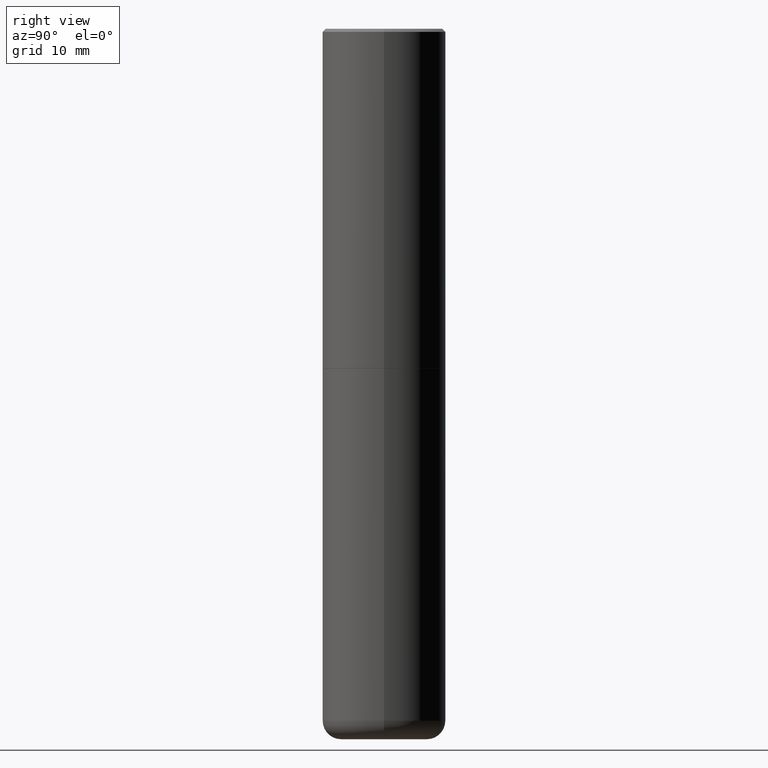
[diagram: clean part render]
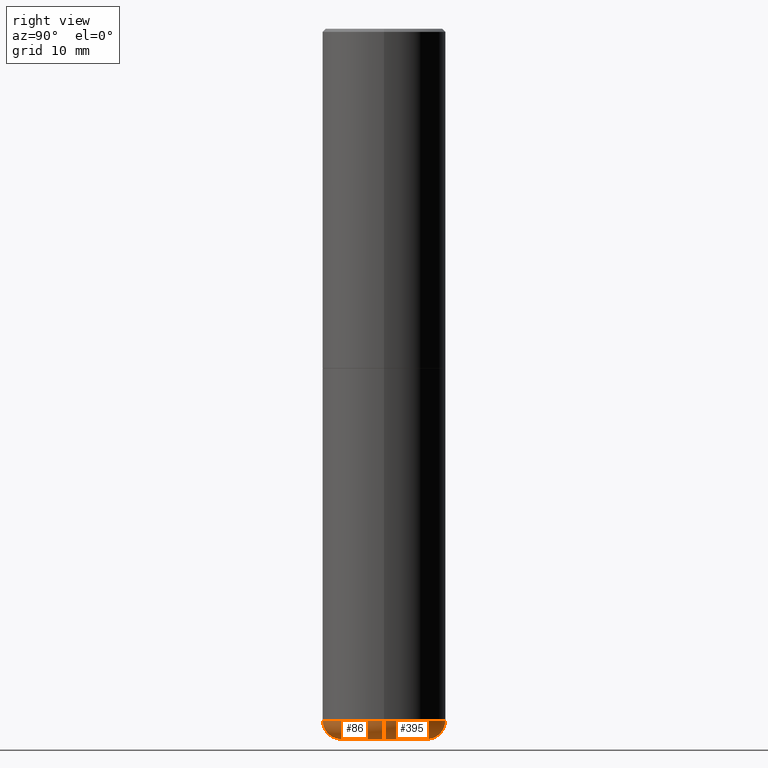
[diagram: same view with one multi-face feature highlighted, each face labeled with its STEP entity id]
A machine part, right view. The highlighted faces form ONE feature: a constant-radius fillet chain: 2 tangent blend faces with common blend radius 2.9997 mm. The faces share edges in the B-rep.
Their STEP definitions:
[1] entity #395 (Torus):
#1 = ORIENTED_EDGE ( 'NONE', *, *, #77, .F. ) ;
#7 = AXIS2_PLACEMENT_3D ( 'NONE', #285, #251, #155 ) ;
#10 = CARTESIAN_POINT ( 'NONE',  ( 1.078329470087335798E-28, -1.539568696362884818E-14, -4.409499999999999531 ) ) ;
#22 = DIRECTION ( 'NONE',  ( -2.445468806185136597E-29, 3.491481338843145583E-15, 1.000000000000000000 ) ) ;
#25 = CARTESIAN_POINT ( 'NONE',  ( 0.2756000000000000116, -1.773253542371655569E-14, -4.527599999999998737 ) ) ;
#27 = CARTESIAN_POINT ( 'NONE',  ( -0.3936999999999998834, -1.259828021294133576E-14, -4.409499999999999531 ) ) ;
#31 = VERTEX_POINT ( 'NONE', #25 ) ;
#35 = DIRECTION ( 'NONE',  ( 7.105427357601001859E-15, 1.000000000000000000, -3.491481338843145583E-15 ) ) ;
#56 = CIRCLE ( 'NONE', #7, 0.1180999999999997191 ) ;
#62 = VERTEX_POINT ( 'NONE', #194 ) ;
#69 = ORIENTED_EDGE ( 'NONE', *, *, #403, .T. ) ;
#71 = AXIS2_PLACEMENT_3D ( 'NONE', #316, #22, #327 ) ;
#73 = DIRECTION ( 'NONE',  ( 1.000000000000000000, -6.982962677686268288E-15, 4.883557194083112901E-29 ) ) ;
#77 = EDGE_CURVE ( 'NONE', #31, #62, #56, .T. ) ;
#115 = CIRCLE ( 'NONE', #349, 0.2756000000000000116 ) ;
#131 = CARTESIAN_POINT ( 'NONE',  ( 1.107210456688382074E-28, -1.580803090974622074E-14, -4.527599999999998737 ) ) ;
#144 = ORIENTED_EDGE ( 'NONE', *, *, #298, .F. ) ;
#148 = FACE_OUTER_BOUND ( 'NONE', #235, .T. ) ;
#155 = DIRECTION ( 'NONE',  ( 1.000000000000000000, -6.982962677686273021E-15, 0.000000000000000000 ) ) ;
#173 = AXIS2_PLACEMENT_3D ( 'NONE', #10, #265, #73 ) ;
#194 = CARTESIAN_POINT ( 'NONE',  ( 0.3936999999999998834, -1.814487936983393140E-14, -4.409499999999999531 ) ) ;
#222 = AXIS2_PLACEMENT_3D ( 'NONE', #242, #35, #359 ) ;
#228 = VERTEX_POINT ( 'NONE', #27 ) ;
#235 = EDGE_LOOP ( 'NONE', ( #390, #69, #144, #1 ) ) ;
#242 = CARTESIAN_POINT ( 'NONE',  ( -0.2756000000000000116, -1.343743118387401317E-14, -4.409499999999999531 ) ) ;
#251 = DIRECTION ( 'NONE',  ( -6.982962677686266711E-15, -1.000000000000000000, 3.491481338843145583E-15 ) ) ;
#260 = DIRECTION ( 'NONE',  ( -2.445468806185136597E-29, 3.491481338843145583E-15, 1.000000000000000000 ) ) ;
#265 = DIRECTION ( 'NONE',  ( -2.445468806185136597E-29, 3.491481338843145583E-15, 1.000000000000000000 ) ) ;
#285 = CARTESIAN_POINT ( 'NONE',  ( 0.2756000000000000116, -1.732019147759918314E-14, -4.409499999999999531 ) ) ;
#298 = EDGE_CURVE ( 'NONE', #62, #228, #321, .T. ) ;
#309 = VERTEX_POINT ( 'NONE', #351 ) ;
#316 = CARTESIAN_POINT ( 'NONE',  ( 1.078329470087335798E-28, -1.539568696362884818E-14, -4.409499999999999531 ) ) ;
#321 = CIRCLE ( 'NONE', #71, 0.3937000000000000499 ) ;
#324 = CIRCLE ( 'NONE', #222, 0.1180999999999997191 ) ;
#327 = DIRECTION ( 'NONE',  ( 1.000000000000000000, -6.982962677686262766E-15, 0.000000000000000000 ) ) ;
#349 = AXIS2_PLACEMENT_3D ( 'NONE', #131, #260, #386 ) ;
#351 = CARTESIAN_POINT ( 'NONE',  ( -0.2756000000000000116, -1.322402767146636311E-14, -4.527599999999998737 ) ) ;
#359 = DIRECTION ( 'NONE',  ( -1.000000000000000000, 7.105427357601005014E-15, 0.000000000000000000 ) ) ;
#373 = EDGE_CURVE ( 'NONE', #31, #309, #115, .T. ) ;
#386 = DIRECTION ( 'NONE',  ( 1.000000000000000000, -6.982962677686265922E-15, 0.000000000000000000 ) ) ;
#390 = ORIENTED_EDGE ( 'NONE', *, *, #373, .T. ) ;
#395 = ADVANCED_FACE ( 'NONE', ( #148 ), #408, .T. ) ;
#403 = EDGE_CURVE ( 'NONE', #309, #228, #324, .T. ) ;
#408 = TOROIDAL_SURFACE ( 'NONE', #173, 0.2756000000000000116, 0.1180999999999997468 ) ;
[2] entity #86 (Torus):
#7 = AXIS2_PLACEMENT_3D ( 'NONE', #285, #251, #155 ) ;
#25 = CARTESIAN_POINT ( 'NONE',  ( 0.2756000000000000116, -1.773253542371655569E-14, -4.527599999999998737 ) ) ;
#27 = CARTESIAN_POINT ( 'NONE',  ( -0.3936999999999998834, -1.259828021294133576E-14, -4.409499999999999531 ) ) ;
#31 = VERTEX_POINT ( 'NONE', #25 ) ;
#35 = DIRECTION ( 'NONE',  ( 7.105427357601001859E-15, 1.000000000000000000, -3.491481338843145583E-15 ) ) ;
#56 = CIRCLE ( 'NONE', #7, 0.1180999999999997191 ) ;
#62 = VERTEX_POINT ( 'NONE', #194 ) ;
#77 = EDGE_CURVE ( 'NONE', #31, #62, #56, .T. ) ;
#78 = CARTESIAN_POINT ( 'NONE',  ( 1.107210456688382074E-28, -1.580803090974622074E-14, -4.527599999999998737 ) ) ;
#86 = ADVANCED_FACE ( 'NONE', ( #317 ), #247, .T. ) ;
#118 = DIRECTION ( 'NONE',  ( 1.000000000000000000, -6.982962677686268288E-15, 4.883557194083112901E-29 ) ) ;
#134 = EDGE_CURVE ( 'NONE', #228, #62, #286, .T. ) ;
#146 = DIRECTION ( 'NONE',  ( 1.000000000000000000, -6.982962677686265922E-15, 0.000000000000000000 ) ) ;
#151 = EDGE_CURVE ( 'NONE', #309, #31, #345, .T. ) ;
#155 = DIRECTION ( 'NONE',  ( 1.000000000000000000, -6.982962677686273021E-15, 0.000000000000000000 ) ) ;
#176 = EDGE_LOOP ( 'NONE', ( #238, #401, #273, #270 ) ) ;
#194 = CARTESIAN_POINT ( 'NONE',  ( 0.3936999999999998834, -1.814487936983393140E-14, -4.409499999999999531 ) ) ;
#222 = AXIS2_PLACEMENT_3D ( 'NONE', #242, #35, #359 ) ;
#228 = VERTEX_POINT ( 'NONE', #27 ) ;
#237 = AXIS2_PLACEMENT_3D ( 'NONE', #275, #269, #240 ) ;
#238 = ORIENTED_EDGE ( 'NONE', *, *, #403, .F. ) ;
#240 = DIRECTION ( 'NONE',  ( 1.000000000000000000, -6.982962677686262766E-15, 0.000000000000000000 ) ) ;
#242 = CARTESIAN_POINT ( 'NONE',  ( -0.2756000000000000116, -1.343743118387401317E-14, -4.409499999999999531 ) ) ;
#247 = TOROIDAL_SURFACE ( 'NONE', #343, 0.2756000000000000116, 0.1180999999999997468 ) ;
#251 = DIRECTION ( 'NONE',  ( -6.982962677686266711E-15, -1.000000000000000000, 3.491481338843145583E-15 ) ) ;
#269 = DIRECTION ( 'NONE',  ( -2.445468806185136597E-29, 3.491481338843145583E-15, 1.000000000000000000 ) ) ;
#270 = ORIENTED_EDGE ( 'NONE', *, *, #134, .F. ) ;
#273 = ORIENTED_EDGE ( 'NONE', *, *, #77, .T. ) ;
#275 = CARTESIAN_POINT ( 'NONE',  ( 1.078329470087335798E-28, -1.539568696362884818E-14, -4.409499999999999531 ) ) ;
#285 = CARTESIAN_POINT ( 'NONE',  ( 0.2756000000000000116, -1.732019147759918314E-14, -4.409499999999999531 ) ) ;
#286 = CIRCLE ( 'NONE', #237, 0.3937000000000000499 ) ;
#309 = VERTEX_POINT ( 'NONE', #351 ) ;
#317 = FACE_OUTER_BOUND ( 'NONE', #176, .T. ) ;
#324 = CIRCLE ( 'NONE', #222, 0.1180999999999997191 ) ;
#340 = DIRECTION ( 'NONE',  ( -2.445468806185136597E-29, 3.491481338843145583E-15, 1.000000000000000000 ) ) ;
#343 = AXIS2_PLACEMENT_3D ( 'NONE', #383, #352, #118 ) ;
#345 = CIRCLE ( 'NONE', #404, 0.2756000000000000116 ) ;
#351 = CARTESIAN_POINT ( 'NONE',  ( -0.2756000000000000116, -1.322402767146636311E-14, -4.527599999999998737 ) ) ;
#352 = DIRECTION ( 'NONE',  ( -2.445468806185136597E-29, 3.491481338843145583E-15, 1.000000000000000000 ) ) ;
#359 = DIRECTION ( 'NONE',  ( -1.000000000000000000, 7.105427357601005014E-15, 0.000000000000000000 ) ) ;
#383 = CARTESIAN_POINT ( 'NONE',  ( 1.078329470087335798E-28, -1.539568696362884818E-14, -4.409499999999999531 ) ) ;
#401 = ORIENTED_EDGE ( 'NONE', *, *, #151, .T. ) ;
#403 = EDGE_CURVE ( 'NONE', #309, #228, #324, .T. ) ;
#404 = AXIS2_PLACEMENT_3D ( 'NONE', #78, #340, #146 ) ;